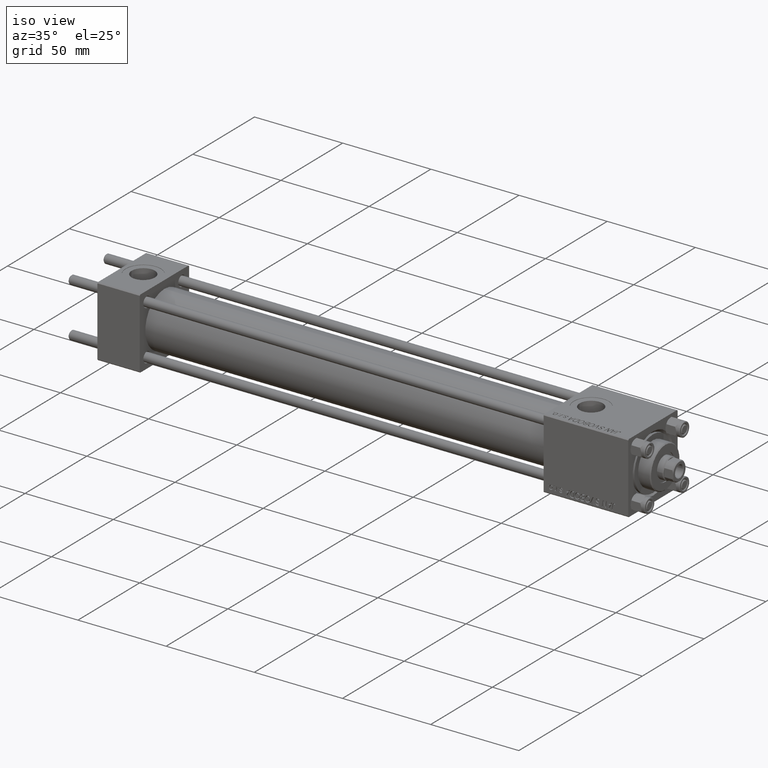
[diagram: clean part render]
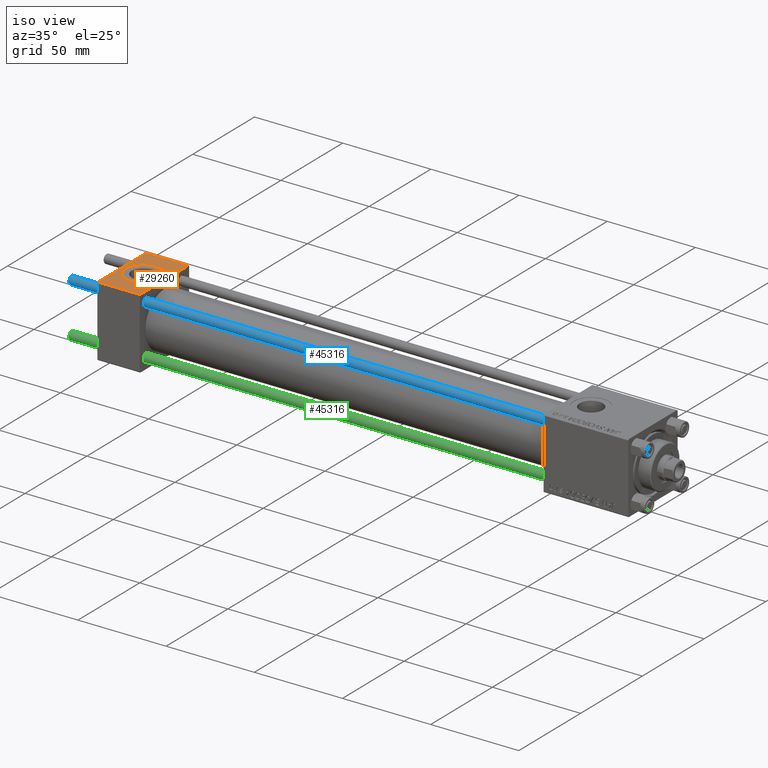
[diagram: same view with three faces highlighted in distinct colors, each labeled with its STEP entity id]
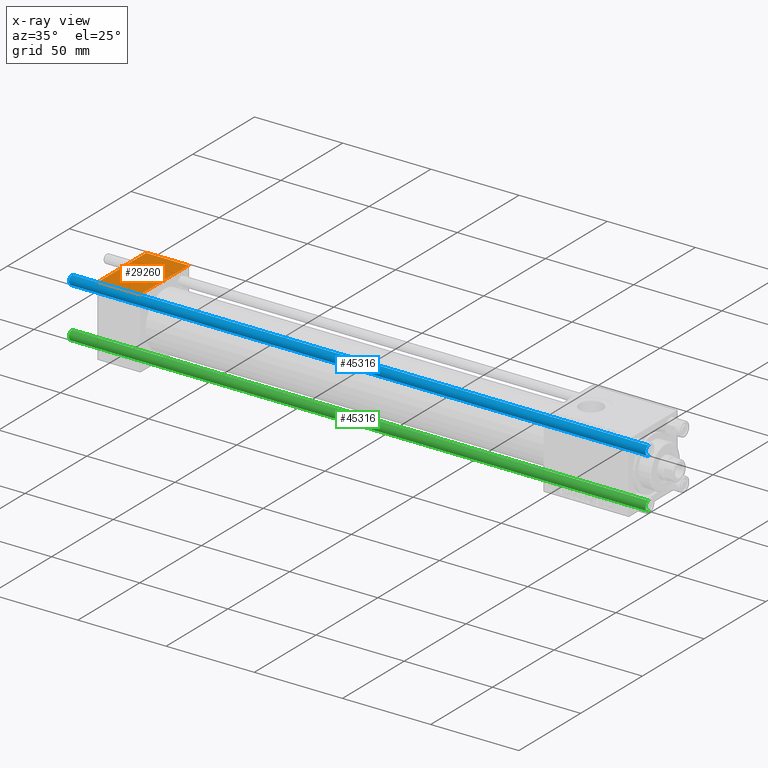
[diagram: x-ray of the same camera — body ghosted, the three highlighted faces saturated]
A machine part, iso view with three faces highlighted in distinct colors.
The next image is the same camera in x-ray (body ghosted, the three faces saturated) — at least one of them is partly hidden behind the body in this view.
Their STEP definitions:

[orange] entity #29260 — the highlighted planar face has unit normal (0, 0, -1).
#431 = ORIENTED_EDGE ( 'NONE', *, *, #43077, .F. ) ;
#1397 = EDGE_LOOP ( 'NONE', ( #7391, #20184, #431, #12031 ) ) ;
#1468 = EDGE_LOOP ( 'NONE', ( #20690, #35678 ) ) ;
#1791 = CIRCLE ( 'NONE', #5768, 9.999999999999998224 ) ;
#1853 = EDGE_CURVE ( 'NONE', #48926, #8869, #25357, .T. ) ;
#1910 = CARTESIAN_POINT ( 'NONE',  ( 12.00000000000000000, 1.540743955509788682E-30, 19.99999999999999645 ) ) ;
#3616 = VECTOR ( 'NONE', #19454, 1000.000000000000000 ) ;
#3675 = AXIS2_PLACEMENT_3D ( 'NONE', #48867, #18612, #40790 ) ;
#4932 = CARTESIAN_POINT ( 'NONE',  ( 24.00000000000000000, -19.49999999999999289, 19.99999999999998934 ) ) ;
#5768 = AXIS2_PLACEMENT_3D ( 'NONE', #33874, #15237, #19255 ) ;
#6673 = EDGE_CURVE ( 'NONE', #39545, #26713, #26494, .T. ) ;
#7391 = ORIENTED_EDGE ( 'NONE', *, *, #1853, .T. ) ;
#8869 = VERTEX_POINT ( 'NONE', #42663 ) ;
#8940 = DIRECTION ( 'NONE',  ( 1.000000000000000000, 0.000000000000000000, 0.000000000000000000 ) ) ;
#10609 = CARTESIAN_POINT ( 'NONE',  ( 0.000000000000000000, 19.50000000000000000, 20.00000000000000000 ) ) ;
#11868 = VERTEX_POINT ( 'NONE', #33622 ) ;
#12031 = ORIENTED_EDGE ( 'NONE', *, *, #47411, .T. ) ;
#12963 = LINE ( 'NONE', #4932, #18935 ) ;
#13068 = EDGE_CURVE ( 'NONE', #26713, #39545, #1791, .T. ) ;
#13183 = CARTESIAN_POINT ( 'NONE',  ( 2.000000000000003553, 1.224646799147354440E-15, 19.99999999999999645 ) ) ;
#15237 = DIRECTION ( 'NONE',  ( 0.000000000000000000, 0.000000000000000000, 1.000000000000000000 ) ) ;
#18612 = DIRECTION ( 'NONE',  ( 0.000000000000000000, 2.602085213965210149E-16, -1.000000000000000000 ) ) ;
#18935 = VECTOR ( 'NONE', #8940, 1000.000000000000000 ) ;
#19255 = DIRECTION ( 'NONE',  ( 1.000000000000000000, 0.000000000000000000, 0.000000000000000000 ) ) ;
#19454 = DIRECTION ( 'NONE',  ( 0.000000000000000000, -1.000000000000000000, -2.602085213965210149E-16 ) ) ;
#19957 = CARTESIAN_POINT ( 'NONE',  ( 24.00000000000000000, 20.00000000000000000, 20.00000000000000000 ) ) ;
#20184 = ORIENTED_EDGE ( 'NONE', *, *, #26328, .T. ) ;
#20690 = ORIENTED_EDGE ( 'NONE', *, *, #13068, .F. ) ;
#22381 = CARTESIAN_POINT ( 'NONE',  ( 22.00000000000000000, 1.540743955509788682E-30, 19.99999999999999645 ) ) ;
#22391 = PLANE ( 'NONE',  #3675 ) ;
#23731 = LINE ( 'NONE', #19957, #3616 ) ;
#24540 = DIRECTION ( 'NONE',  ( 0.000000000000000000, 0.000000000000000000, 1.000000000000000000 ) ) ;
#24839 = VERTEX_POINT ( 'NONE', #48635 ) ;
#25357 = LINE ( 'NONE', #43750, #33705 ) ;
#26328 = EDGE_CURVE ( 'NONE', #8869, #24839, #12963, .T. ) ;
#26494 = CIRCLE ( 'NONE', #44984, 9.999999999999998224 ) ;
#26713 = VERTEX_POINT ( 'NONE', #22381 ) ;
#29260 = ADVANCED_FACE ( 'NONE', ( #32964, #45326 ), #22391, .F. ) ;
#32902 = DIRECTION ( 'NONE',  ( 0.000000000000000000, -1.000000000000000000, -2.602085213965210149E-16 ) ) ;
#32964 = FACE_BOUND ( 'NONE', #1468, .T. ) ;
#33622 = CARTESIAN_POINT ( 'NONE',  ( 24.00000000000000000, 19.50000000000000000, 20.00000000000000000 ) ) ;
#33705 = VECTOR ( 'NONE', #32902, 1000.000000000000000 ) ;
#33874 = CARTESIAN_POINT ( 'NONE',  ( 12.00000000000000000, 1.540743955509788682E-30, 19.99999999999999645 ) ) ;
#35678 = ORIENTED_EDGE ( 'NONE', *, *, #6673, .F. ) ;
#37562 = DIRECTION ( 'NONE',  ( -1.000000000000000000, 0.000000000000000000, 0.000000000000000000 ) ) ;
#38488 = CARTESIAN_POINT ( 'NONE',  ( 0.000000000000000000, 19.50000000000000000, 20.00000000000000000 ) ) ;
#39545 = VERTEX_POINT ( 'NONE', #13183 ) ;
#40790 = DIRECTION ( 'NONE',  ( 0.000000000000000000, 1.000000000000000000, 2.602085213965210149E-16 ) ) ;
#42663 = CARTESIAN_POINT ( 'NONE',  ( 0.000000000000000000, -19.49999999999999289, 19.99999999999998934 ) ) ;
#43077 = EDGE_CURVE ( 'NONE', #11868, #24839, #23731, .T. ) ;
#43750 = CARTESIAN_POINT ( 'NONE',  ( 0.000000000000000000, 20.00000000000000000, 20.00000000000000000 ) ) ;
#44984 = AXIS2_PLACEMENT_3D ( 'NONE', #1910, #24540, #47726 ) ;
#45116 = LINE ( 'NONE', #10609, #47170 ) ;
#45326 = FACE_OUTER_BOUND ( 'NONE', #1397, .T. ) ;
#47170 = VECTOR ( 'NONE', #37562, 1000.000000000000000 ) ;
#47411 = EDGE_CURVE ( 'NONE', #11868, #48926, #45116, .T. ) ;
#47726 = DIRECTION ( 'NONE',  ( 1.000000000000000000, 0.000000000000000000, 0.000000000000000000 ) ) ;
#48635 = CARTESIAN_POINT ( 'NONE',  ( 24.00000000000000000, -19.49999999999999289, 19.99999999999998934 ) ) ;
#48867 = CARTESIAN_POINT ( 'NONE',  ( 24.00000000000000000, 20.00000000000000000, 20.00000000000000000 ) ) ;
#48926 = VERTEX_POINT ( 'NONE', #38488 ) ;

[blue] entity #45316 — the highlighted cylindrical surface (edge-blend (fillet) strip) has radius 2.5 mm, axis along (1, -0, 0).
#3028 = CYLINDRICAL_SURFACE ( 'NONE', #44685, 2.500000000000000000 ) ;
#4855 = EDGE_CURVE ( 'NONE', #24254, #45574, #33905, .T. ) ;
#5349 = ORIENTED_EDGE ( 'NONE', *, *, #20677, .T. ) ;
#6976 = DIRECTION ( 'NONE',  ( 1.000000000000000000, 0.000000000000000000, 0.000000000000000000 ) ) ;
#7365 = AXIS2_PLACEMENT_3D ( 'NONE', #17534, #9973, #6976 ) ;
#9173 = EDGE_CURVE ( 'NONE', #45574, #43679, #38604, .T. ) ;
#9973 = DIRECTION ( 'NONE',  ( 0.000000000000000000, 0.000000000000000000, -1.000000000000000000 ) ) ;
#11841 = ORIENTED_EDGE ( 'NONE', *, *, #4855, .T. ) ;
#13826 = ORIENTED_EDGE ( 'NONE', *, *, #20377, .F. ) ;
#14591 = DIRECTION ( 'NONE',  ( -0.000000000000000000, -0.000000000000000000, -1.000000000000000000 ) ) ;
#17534 = CARTESIAN_POINT ( 'NONE',  ( 0.000000000000000000, 0.000000000000000000, 327.4999999999999432 ) ) ;
#20377 = EDGE_CURVE ( 'NONE', #24254, #35179, #21559, .T. ) ;
#20677 = EDGE_CURVE ( 'NONE', #43679, #35179, #31619, .T. ) ;
#21559 = LINE ( 'NONE', #45239, #21998 ) ;
#21733 = CARTESIAN_POINT ( 'NONE',  ( 2.500000000000000000, 3.061616997868383141E-16, 327.4999999999999432 ) ) ;
#21799 = CARTESIAN_POINT ( 'NONE',  ( -2.500000000000000000, 0.000000000000000000, 327.4999999999999432 ) ) ;
#21998 = VECTOR ( 'NONE', #22054, 1000.000000000000000 ) ;
#22054 = DIRECTION ( 'NONE',  ( -0.000000000000000000, -0.000000000000000000, -1.000000000000000000 ) ) ;
#22949 = CARTESIAN_POINT ( 'NONE',  ( -2.500000000000000000, 0.000000000000000000, 0.5000000000000004441 ) ) ;
#23568 = AXIS2_PLACEMENT_3D ( 'NONE', #32826, #43185, #35608 ) ;
#23971 = DIRECTION ( 'NONE',  ( -0.000000000000000000, -0.000000000000000000, -1.000000000000000000 ) ) ;
#24254 = VERTEX_POINT ( 'NONE', #21799 ) ;
#29943 = DIRECTION ( 'NONE',  ( -1.000000000000000000, 0.000000000000000000, 0.000000000000000000 ) ) ;
#30592 = VECTOR ( 'NONE', #23971, 1000.000000000000000 ) ;
#31027 = CARTESIAN_POINT ( 'NONE',  ( 2.500000000000000000, 3.061616997868383141E-16, 328.0000000000000000 ) ) ;
#31619 = CIRCLE ( 'NONE', #23568, 2.500000000000000000 ) ;
#32826 = CARTESIAN_POINT ( 'NONE',  ( 0.000000000000000000, 0.000000000000000000, 0.5000000000000004441 ) ) ;
#33905 = CIRCLE ( 'NONE', #7365, 2.500000000000000000 ) ;
#35179 = VERTEX_POINT ( 'NONE', #22949 ) ;
#35608 = DIRECTION ( 'NONE',  ( 1.000000000000000000, 0.000000000000000000, 0.000000000000000000 ) ) ;
#37252 = FACE_OUTER_BOUND ( 'NONE', #45039, .T. ) ;
#38005 = CARTESIAN_POINT ( 'NONE',  ( 0.000000000000000000, 0.000000000000000000, 328.0000000000000000 ) ) ;
#38604 = LINE ( 'NONE', #31027, #30592 ) ;
#39659 = CARTESIAN_POINT ( 'NONE',  ( 2.500000000000000000, 3.061616997868383141E-16, 0.5000000000000004441 ) ) ;
#43185 = DIRECTION ( 'NONE',  ( -0.000000000000000000, -0.000000000000000000, 1.000000000000000000 ) ) ;
#43189 = ORIENTED_EDGE ( 'NONE', *, *, #9173, .T. ) ;
#43679 = VERTEX_POINT ( 'NONE', #39659 ) ;
#44685 = AXIS2_PLACEMENT_3D ( 'NONE', #38005, #14591, #29943 ) ;
#45039 = EDGE_LOOP ( 'NONE', ( #11841, #43189, #5349, #13826 ) ) ;
#45239 = CARTESIAN_POINT ( 'NONE',  ( -2.500000000000000000, 0.000000000000000000, 328.0000000000000000 ) ) ;
#45316 = ADVANCED_FACE ( 'NONE', ( #37252 ), #3028, .T. ) ;
#45574 = VERTEX_POINT ( 'NONE', #21733 ) ;

[green] entity #45316 — the highlighted cylindrical surface (edge-blend (fillet) strip) has radius 2.5 mm, axis along (-1, 0, 0).
#3028 = CYLINDRICAL_SURFACE ( 'NONE', #44685, 2.500000000000000000 ) ;
#4855 = EDGE_CURVE ( 'NONE', #24254, #45574, #33905, .T. ) ;
#5349 = ORIENTED_EDGE ( 'NONE', *, *, #20677, .T. ) ;
#6976 = DIRECTION ( 'NONE',  ( 1.000000000000000000, 0.000000000000000000, 0.000000000000000000 ) ) ;
#7365 = AXIS2_PLACEMENT_3D ( 'NONE', #17534, #9973, #6976 ) ;
#9173 = EDGE_CURVE ( 'NONE', #45574, #43679, #38604, .T. ) ;
#9973 = DIRECTION ( 'NONE',  ( 0.000000000000000000, 0.000000000000000000, -1.000000000000000000 ) ) ;
#11841 = ORIENTED_EDGE ( 'NONE', *, *, #4855, .T. ) ;
#13826 = ORIENTED_EDGE ( 'NONE', *, *, #20377, .F. ) ;
#14591 = DIRECTION ( 'NONE',  ( -0.000000000000000000, -0.000000000000000000, -1.000000000000000000 ) ) ;
#17534 = CARTESIAN_POINT ( 'NONE',  ( 0.000000000000000000, 0.000000000000000000, 327.4999999999999432 ) ) ;
#20377 = EDGE_CURVE ( 'NONE', #24254, #35179, #21559, .T. ) ;
#20677 = EDGE_CURVE ( 'NONE', #43679, #35179, #31619, .T. ) ;
#21559 = LINE ( 'NONE', #45239, #21998 ) ;
#21733 = CARTESIAN_POINT ( 'NONE',  ( 2.500000000000000000, 3.061616997868383141E-16, 327.4999999999999432 ) ) ;
#21799 = CARTESIAN_POINT ( 'NONE',  ( -2.500000000000000000, 0.000000000000000000, 327.4999999999999432 ) ) ;
#21998 = VECTOR ( 'NONE', #22054, 1000.000000000000000 ) ;
#22054 = DIRECTION ( 'NONE',  ( -0.000000000000000000, -0.000000000000000000, -1.000000000000000000 ) ) ;
#22949 = CARTESIAN_POINT ( 'NONE',  ( -2.500000000000000000, 0.000000000000000000, 0.5000000000000004441 ) ) ;
#23568 = AXIS2_PLACEMENT_3D ( 'NONE', #32826, #43185, #35608 ) ;
#23971 = DIRECTION ( 'NONE',  ( -0.000000000000000000, -0.000000000000000000, -1.000000000000000000 ) ) ;
#24254 = VERTEX_POINT ( 'NONE', #21799 ) ;
#29943 = DIRECTION ( 'NONE',  ( -1.000000000000000000, 0.000000000000000000, 0.000000000000000000 ) ) ;
#30592 = VECTOR ( 'NONE', #23971, 1000.000000000000000 ) ;
#31027 = CARTESIAN_POINT ( 'NONE',  ( 2.500000000000000000, 3.061616997868383141E-16, 328.0000000000000000 ) ) ;
#31619 = CIRCLE ( 'NONE', #23568, 2.500000000000000000 ) ;
#32826 = CARTESIAN_POINT ( 'NONE',  ( 0.000000000000000000, 0.000000000000000000, 0.5000000000000004441 ) ) ;
#33905 = CIRCLE ( 'NONE', #7365, 2.500000000000000000 ) ;
#35179 = VERTEX_POINT ( 'NONE', #22949 ) ;
#35608 = DIRECTION ( 'NONE',  ( 1.000000000000000000, 0.000000000000000000, 0.000000000000000000 ) ) ;
#37252 = FACE_OUTER_BOUND ( 'NONE', #45039, .T. ) ;
#38005 = CARTESIAN_POINT ( 'NONE',  ( 0.000000000000000000, 0.000000000000000000, 328.0000000000000000 ) ) ;
#38604 = LINE ( 'NONE', #31027, #30592 ) ;
#39659 = CARTESIAN_POINT ( 'NONE',  ( 2.500000000000000000, 3.061616997868383141E-16, 0.5000000000000004441 ) ) ;
#43185 = DIRECTION ( 'NONE',  ( -0.000000000000000000, -0.000000000000000000, 1.000000000000000000 ) ) ;
#43189 = ORIENTED_EDGE ( 'NONE', *, *, #9173, .T. ) ;
#43679 = VERTEX_POINT ( 'NONE', #39659 ) ;
#44685 = AXIS2_PLACEMENT_3D ( 'NONE', #38005, #14591, #29943 ) ;
#45039 = EDGE_LOOP ( 'NONE', ( #11841, #43189, #5349, #13826 ) ) ;
#45239 = CARTESIAN_POINT ( 'NONE',  ( -2.500000000000000000, 0.000000000000000000, 328.0000000000000000 ) ) ;
#45316 = ADVANCED_FACE ( 'NONE', ( #37252 ), #3028, .T. ) ;
#45574 = VERTEX_POINT ( 'NONE', #21733 ) ;